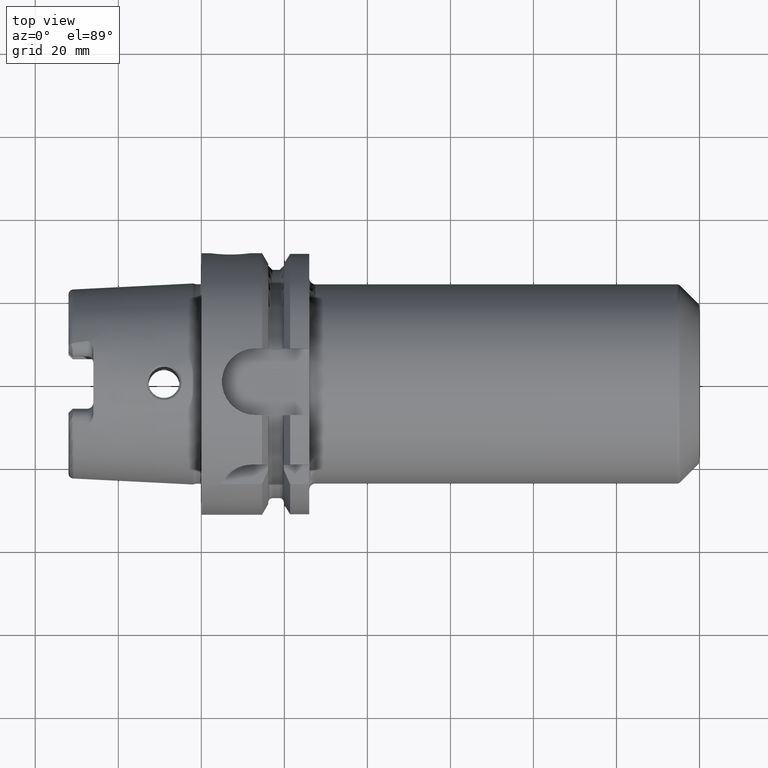
[diagram: clean part render]
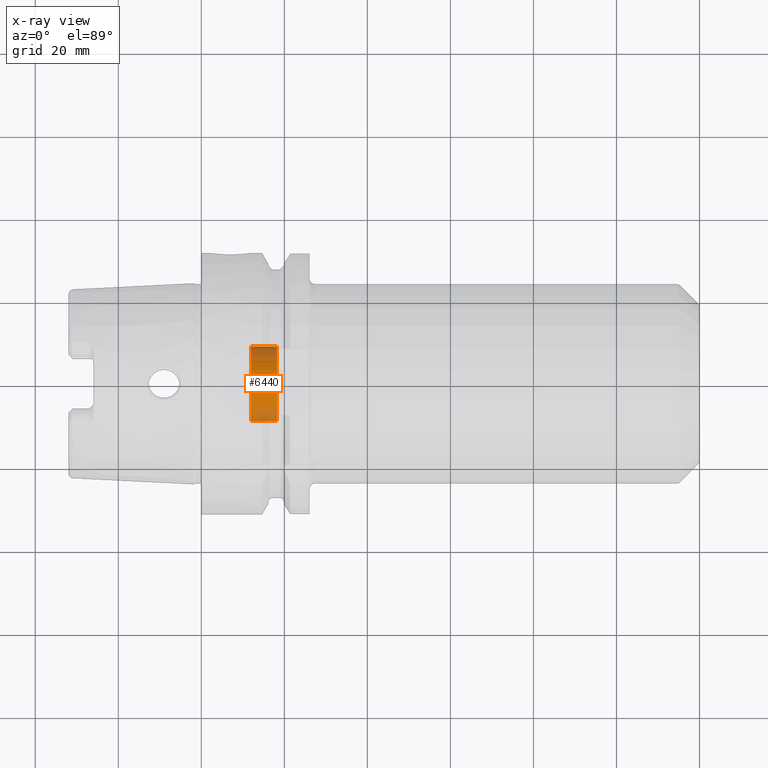
[diagram: x-ray — body ghosted, one internal face saturated and labeled with its STEP entity id]
A machine part, top view, then the same camera in x-ray: the body is ghosted and one INTERNAL B-rep face — a face not visible from any outside direction — is saturated and labeled: STEP entity #6440.
In plain terms, the highlighted cylindrical surface (partial cylindrical patch) has radius 9 mm, axis along (1, 0, 0).
Its self-contained STEP definition (entity closure, byte-faithful):
#6389=CARTESIAN_POINT('',(1.19625E1,0.E0,0.E0));
#6390=DIRECTION('',(-1.E0,0.E0,0.E0));
#6391=DIRECTION('',(0.E0,-1.E0,0.E0));
#6392=AXIS2_PLACEMENT_3D('',#6389,#6390,#6391);
#6394=DIRECTION('',(1.E0,0.E0,0.E0));
#6395=VECTOR('',#6394,6.261593106483E0);
#6396=CARTESIAN_POINT('',(1.19625E1,9.E0,0.E0));
#6397=LINE('',#6396,#6395);
#6398=CARTESIAN_POINT('',(1.822409310648E1,0.E0,0.E0));
#6399=DIRECTION('',(1.E0,0.E0,0.E0));
#6400=DIRECTION('',(0.E0,1.E0,0.E0));
#6401=AXIS2_PLACEMENT_3D('',#6398,#6399,#6400);
#6408=DIRECTION('',(1.E0,0.E0,0.E0));
#6409=VECTOR('',#6408,6.261593106483E0);
#6410=CARTESIAN_POINT('',(1.19625E1,-9.E0,0.E0));
#6411=LINE('',#6410,#6409);
#6417=CARTESIAN_POINT('',(1.822409310648E1,9.E0,0.E0));
#6418=CARTESIAN_POINT('',(1.822409310648E1,-9.E0,0.E0));
#6419=VERTEX_POINT('',#6417);
#6420=VERTEX_POINT('',#6418);
#6421=CARTESIAN_POINT('',(1.19625E1,9.E0,0.E0));
#6422=CARTESIAN_POINT('',(1.19625E1,-9.E0,0.E0));
#6423=VERTEX_POINT('',#6421);
#6424=VERTEX_POINT('',#6422);
#6425=CARTESIAN_POINT('',(-3.885261521357E1,0.E0,0.E0));
#6426=DIRECTION('',(1.E0,0.E0,0.E0));
#6427=DIRECTION('',(0.E0,1.E0,0.E0));
#6428=AXIS2_PLACEMENT_3D('',#6425,#6426,#6427);
#6429=CYLINDRICAL_SURFACE('',#6428,9.E0);
#6431=ORIENTED_EDGE('',*,*,#6430,.T.);
#6433=ORIENTED_EDGE('',*,*,#6432,.T.);
#6435=ORIENTED_EDGE('',*,*,#6434,.T.);
#6437=ORIENTED_EDGE('',*,*,#6436,.F.);
#6438=EDGE_LOOP('',(#6431,#6433,#6435,#6437));
#6439=FACE_OUTER_BOUND('',#6438,.F.);
#6440=ADVANCED_FACE('',(#6439),#6429,.T.);
#6393=CIRCLE('',#6392,9.E0);
#6402=CIRCLE('',#6401,9.E0);
#6430=EDGE_CURVE('',#6424,#6423,#6393,.T.);
#6432=EDGE_CURVE('',#6423,#6419,#6397,.T.);
#6434=EDGE_CURVE('',#6419,#6420,#6402,.T.);
#6436=EDGE_CURVE('',#6424,#6420,#6411,.T.);